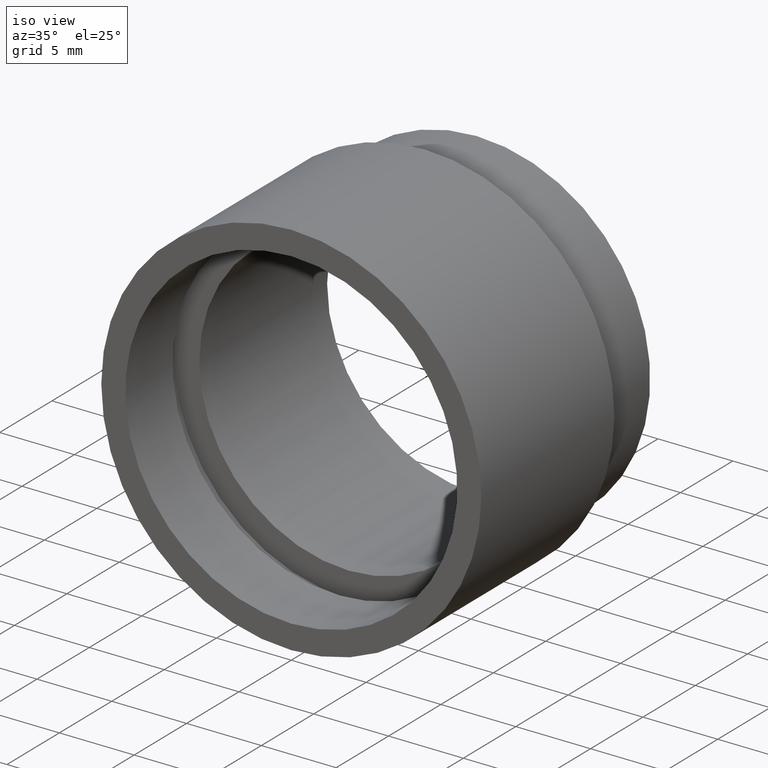
[diagram: clean part render]
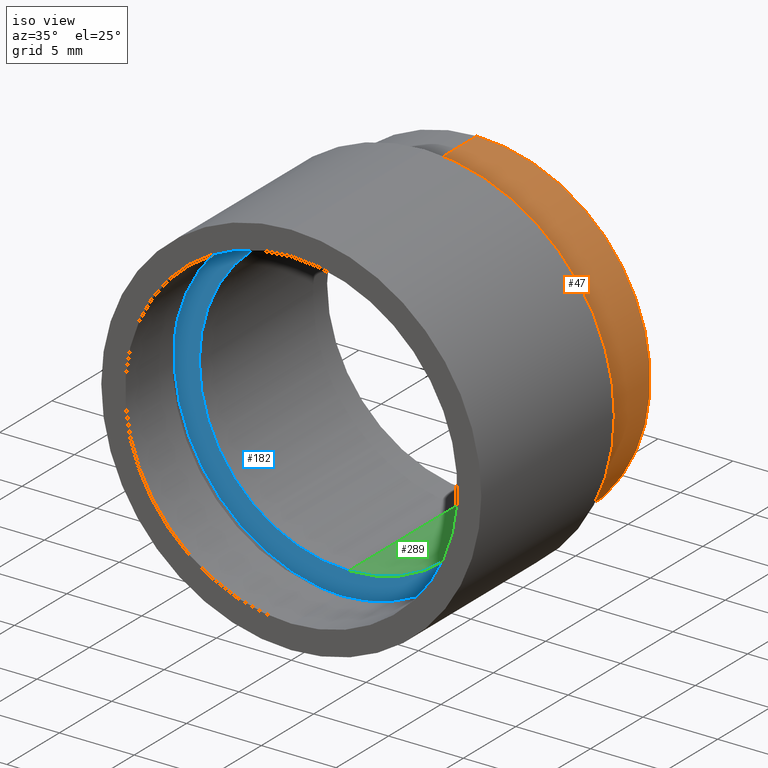
[diagram: same view with three faces highlighted in distinct colors, each labeled with its STEP entity id]
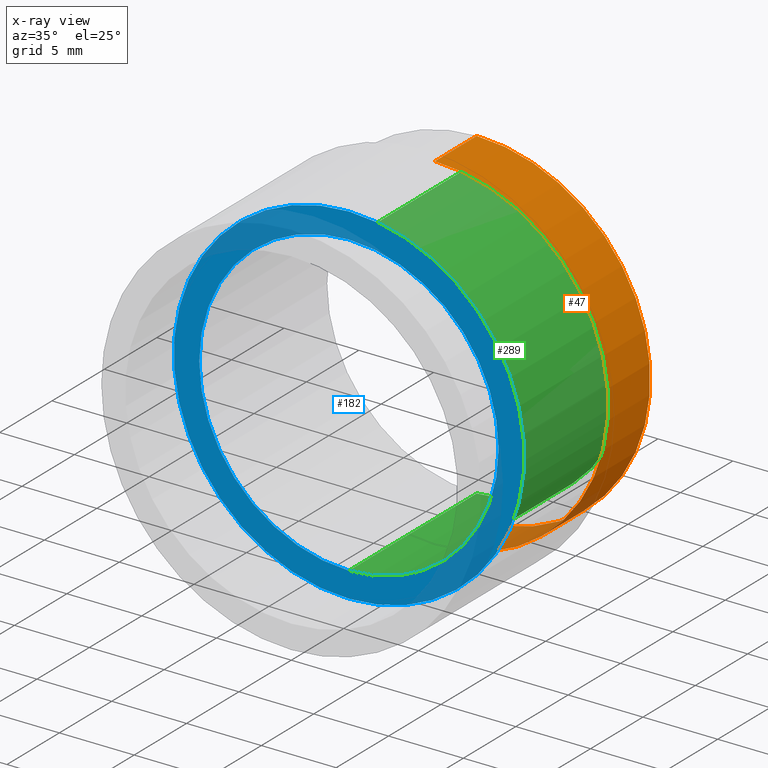
[diagram: x-ray of the same camera — body ghosted, the three highlighted faces saturated]
A machine part, iso view with three faces highlighted in distinct colors.
The next image is the same camera in x-ray (body ghosted, the three faces saturated) — at least one of them is partly hidden behind the body in this view.
Their STEP definitions:

[orange] entity #47 — the highlighted cylindrical surface (partial cylindrical patch) has radius 11.6 mm, axis along (-0, 1, -0).
#26 = ORIENTED_EDGE ( 'NONE', *, *, #190, .T. ) ;
#31 = LINE ( 'NONE', #90, #527 ) ;
#32 = EDGE_CURVE ( 'NONE', #418, #258, #116, .T. ) ;
#43 = AXIS2_PLACEMENT_3D ( 'NONE', #614, #613, #246 ) ;
#45 = DIRECTION ( 'NONE',  ( 0.0000000000000000000, 0.0000000000000000000, 1.000000000000000000 ) ) ;
#47 = ADVANCED_FACE ( 'NONE', ( #454 ), #70, .T. ) ;
#57 = CARTESIAN_POINT ( 'NONE',  ( 1.420590287010931700E-015, 13.69999999999999000, -11.60000000000001700 ) ) ;
#61 = VERTEX_POINT ( 'NONE', #323 ) ;
#70 = CYLINDRICAL_SURFACE ( 'NONE', #114, 11.60000000000001700 ) ;
#90 = CARTESIAN_POINT ( 'NONE',  ( 0.0000000000000000000, 161.3761669434274500, 11.60000000000001700 ) ) ;
#114 = AXIS2_PLACEMENT_3D ( 'NONE', #414, #601, #367 ) ;
#116 = LINE ( 'NONE', #604, #603 ) ;
#178 = ORIENTED_EDGE ( 'NONE', *, *, #607, .F. ) ;
#190 = EDGE_CURVE ( 'NONE', #61, #418, #574, .T. ) ;
#224 = EDGE_CURVE ( 'NONE', #61, #434, #31, .T. ) ;
#234 = ORIENTED_EDGE ( 'NONE', *, *, #32, .T. ) ;
#241 = DIRECTION ( 'NONE',  ( -0.0000000000000000000, 1.000000000000000000, -0.0000000000000000000 ) ) ;
#246 = DIRECTION ( 'NONE',  ( 0.0000000000000000000, 0.0000000000000000000, 1.000000000000000000 ) ) ;
#255 = CARTESIAN_POINT ( 'NONE',  ( 0.0000000000000000000, 17.69999999999999200, 0.0000000000000000000 ) ) ;
#258 = VERTEX_POINT ( 'NONE', #609 ) ;
#295 = AXIS2_PLACEMENT_3D ( 'NONE', #255, #342, #45 ) ;
#322 = DIRECTION ( 'NONE',  ( -0.0000000000000000000, 1.000000000000000000, -0.0000000000000000000 ) ) ;
#323 = CARTESIAN_POINT ( 'NONE',  ( 0.0000000000000000000, 13.69999999999999000, 11.60000000000001700 ) ) ;
#342 = DIRECTION ( 'NONE',  ( -0.0000000000000000000, 1.000000000000000000, -0.0000000000000000000 ) ) ;
#367 = DIRECTION ( 'NONE',  ( 0.0000000000000000000, 0.0000000000000000000, 1.000000000000000000 ) ) ;
#409 = CIRCLE ( 'NONE', #295, 11.60000000000001700 ) ;
#414 = CARTESIAN_POINT ( 'NONE',  ( 0.0000000000000000000, 161.3761669434274500, 0.0000000000000000000 ) ) ;
#418 = VERTEX_POINT ( 'NONE', #57 ) ;
#434 = VERTEX_POINT ( 'NONE', #453 ) ;
#453 = CARTESIAN_POINT ( 'NONE',  ( 0.0000000000000000000, 17.69999999999999200, 11.60000000000001700 ) ) ;
#454 = FACE_OUTER_BOUND ( 'NONE', #464, .T. ) ;
#464 = EDGE_LOOP ( 'NONE', ( #26, #234, #178, #475 ) ) ;
#475 = ORIENTED_EDGE ( 'NONE', *, *, #224, .F. ) ;
#527 = VECTOR ( 'NONE', #241, 1000.000000000000000 ) ;
#574 = CIRCLE ( 'NONE', #43, 11.60000000000001700 ) ;
#601 = DIRECTION ( 'NONE',  ( -0.0000000000000000000, 1.000000000000000000, -0.0000000000000000000 ) ) ;
#603 = VECTOR ( 'NONE', #322, 1000.000000000000000 ) ;
#604 = CARTESIAN_POINT ( 'NONE',  ( 1.420590287010931700E-015, 161.3761669434274500, -11.60000000000001700 ) ) ;
#607 = EDGE_CURVE ( 'NONE', #434, #258, #409, .T. ) ;
#609 = CARTESIAN_POINT ( 'NONE',  ( 1.420590287010931700E-015, 17.69999999999999200, -11.60000000000001700 ) ) ;
#613 = DIRECTION ( 'NONE',  ( -0.0000000000000000000, 1.000000000000000000, -0.0000000000000000000 ) ) ;
#614 = CARTESIAN_POINT ( 'NONE',  ( 0.0000000000000000000, 13.69999999999999000, 0.0000000000000000000 ) ) ;

[blue] entity #182 — the highlighted planar face has unit normal (-0, 1, 0).
#1 = DIRECTION ( 'NONE',  ( 0.0000000000000000000, 0.0000000000000000000, 1.000000000000000000 ) ) ;
#29 = CARTESIAN_POINT ( 'NONE',  ( 1.432836755002405700E-015, 5.499999999999976900, -11.70000000000001900 ) ) ;
#34 = VERTEX_POINT ( 'NONE', #29 ) ;
#69 = FACE_BOUND ( 'NONE', #320, .T. ) ;
#71 = EDGE_CURVE ( 'NONE', #34, #110, #624, .T. ) ;
#73 = VERTEX_POINT ( 'NONE', #329 ) ;
#110 = VERTEX_POINT ( 'NONE', #411 ) ;
#131 = DIRECTION ( 'NONE',  ( 0.0000000000000000000, 0.0000000000000000000, 1.000000000000000000 ) ) ;
#147 = CARTESIAN_POINT ( 'NONE',  ( 0.0000000000000000000, 5.499999999999976900, 0.0000000000000000000 ) ) ;
#163 = ORIENTED_EDGE ( 'NONE', *, *, #486, .F. ) ;
#179 = AXIS2_PLACEMENT_3D ( 'NONE', #180, #278, #131 ) ;
#180 = CARTESIAN_POINT ( 'NONE',  ( 0.0000000000000000000, 5.499999999999976900, 0.0000000000000000000 ) ) ;
#182 = ADVANCED_FACE ( 'NONE', ( #334, #69 ), #380, .F. ) ;
#204 = CIRCLE ( 'NONE', #239, 10.00000000000002000 ) ;
#205 = DIRECTION ( 'NONE',  ( -0.0000000000000000000, 1.000000000000000000, -0.0000000000000000000 ) ) ;
#239 = AXIS2_PLACEMENT_3D ( 'NONE', #297, #205, #529 ) ;
#247 = ORIENTED_EDGE ( 'NONE', *, *, #71, .F. ) ;
#266 = DIRECTION ( 'NONE',  ( -0.0000000000000000000, 1.000000000000000000, -0.0000000000000000000 ) ) ;
#278 = DIRECTION ( 'NONE',  ( -0.0000000000000000000, 1.000000000000000000, -0.0000000000000000000 ) ) ;
#284 = DIRECTION ( 'NONE',  ( 0.0000000000000000000, 0.0000000000000000000, 1.000000000000000000 ) ) ;
#291 = VERTEX_POINT ( 'NONE', #528 ) ;
#297 = CARTESIAN_POINT ( 'NONE',  ( 0.0000000000000000000, 5.499999999999976900, 0.0000000000000000000 ) ) ;
#308 = EDGE_LOOP ( 'NONE', ( #163, #247 ) ) ;
#320 = EDGE_LOOP ( 'NONE', ( #463, #495 ) ) ;
#329 = CARTESIAN_POINT ( 'NONE',  ( 0.0000000000000000000, 5.499999999999976900, 10.00000000000002000 ) ) ;
#334 = FACE_OUTER_BOUND ( 'NONE', #308, .T. ) ;
#336 = AXIS2_PLACEMENT_3D ( 'NONE', #147, #430, #1 ) ;
#380 = PLANE ( 'NONE',  #598 ) ;
#403 = CIRCLE ( 'NONE', #450, 11.70000000000001900 ) ;
#411 = CARTESIAN_POINT ( 'NONE',  ( 0.0000000000000000000, 5.499999999999976900, 11.70000000000001900 ) ) ;
#430 = DIRECTION ( 'NONE',  ( -0.0000000000000000000, 1.000000000000000000, -0.0000000000000000000 ) ) ;
#450 = AXIS2_PLACEMENT_3D ( 'NONE', #497, #266, #590 ) ;
#463 = ORIENTED_EDGE ( 'NONE', *, *, #596, .T. ) ;
#486 = EDGE_CURVE ( 'NONE', #110, #34, #403, .T. ) ;
#495 = ORIENTED_EDGE ( 'NONE', *, *, #565, .T. ) ;
#497 = CARTESIAN_POINT ( 'NONE',  ( 0.0000000000000000000, 5.499999999999976900, 0.0000000000000000000 ) ) ;
#516 = CARTESIAN_POINT ( 'NONE',  ( 11.70000000000001900, 5.499999999999982200, 0.0000000000000000000 ) ) ;
#517 = CIRCLE ( 'NONE', #336, 10.00000000000002000 ) ;
#528 = CARTESIAN_POINT ( 'NONE',  ( 1.224646799147355400E-015, 5.499999999999976900, -10.00000000000002000 ) ) ;
#529 = DIRECTION ( 'NONE',  ( 0.0000000000000000000, 0.0000000000000000000, 1.000000000000000000 ) ) ;
#565 = EDGE_CURVE ( 'NONE', #291, #73, #204, .T. ) ;
#571 = DIRECTION ( 'NONE',  ( -0.0000000000000000000, 1.000000000000000000, 0.0000000000000000000 ) ) ;
#590 = DIRECTION ( 'NONE',  ( 0.0000000000000000000, 0.0000000000000000000, 1.000000000000000000 ) ) ;
#596 = EDGE_CURVE ( 'NONE', #73, #291, #517, .T. ) ;
#598 = AXIS2_PLACEMENT_3D ( 'NONE', #516, #571, #284 ) ;
#624 = CIRCLE ( 'NONE', #179, 11.70000000000001900 ) ;

[green] entity #289 — the highlighted cylindrical surface (partial cylindrical patch) has radius 10 mm, axis along (-0, 1, -0).
#1 = DIRECTION ( 'NONE',  ( 0.0000000000000000000, 0.0000000000000000000, 1.000000000000000000 ) ) ;
#49 = DIRECTION ( 'NONE',  ( 0.0000000000000000000, 0.0000000000000000000, 1.000000000000000000 ) ) ;
#53 = DIRECTION ( 'NONE',  ( 0.0000000000000000000, 0.0000000000000000000, 1.000000000000000000 ) ) ;
#73 = VERTEX_POINT ( 'NONE', #329 ) ;
#88 = DIRECTION ( 'NONE',  ( -0.0000000000000000000, 1.000000000000000000, -0.0000000000000000000 ) ) ;
#120 = VECTOR ( 'NONE', #88, 1000.000000000000000 ) ;
#147 = CARTESIAN_POINT ( 'NONE',  ( 0.0000000000000000000, 5.499999999999976900, 0.0000000000000000000 ) ) ;
#162 = CARTESIAN_POINT ( 'NONE',  ( 1.224646799147355400E-015, 161.3761669434274500, -10.00000000000002000 ) ) ;
#167 = DIRECTION ( 'NONE',  ( -0.0000000000000000000, 1.000000000000000000, -0.0000000000000000000 ) ) ;
#171 = CIRCLE ( 'NONE', #304, 10.00000000000002000 ) ;
#184 = FACE_OUTER_BOUND ( 'NONE', #506, .T. ) ;
#191 = LINE ( 'NONE', #612, #120 ) ;
#212 = EDGE_CURVE ( 'NONE', #73, #238, #191, .T. ) ;
#238 = VERTEX_POINT ( 'NONE', #573 ) ;
#253 = DIRECTION ( 'NONE',  ( -0.0000000000000000000, 1.000000000000000000, -0.0000000000000000000 ) ) ;
#268 = CYLINDRICAL_SURFACE ( 'NONE', #469, 10.00000000000002000 ) ;
#289 = ADVANCED_FACE ( 'NONE', ( #184 ), #268, .F. ) ;
#291 = VERTEX_POINT ( 'NONE', #528 ) ;
#300 = CARTESIAN_POINT ( 'NONE',  ( 0.0000000000000000000, 17.69999999999999200, 0.0000000000000000000 ) ) ;
#304 = AXIS2_PLACEMENT_3D ( 'NONE', #300, #390, #53 ) ;
#329 = CARTESIAN_POINT ( 'NONE',  ( 0.0000000000000000000, 5.499999999999976900, 10.00000000000002000 ) ) ;
#336 = AXIS2_PLACEMENT_3D ( 'NONE', #147, #430, #1 ) ;
#355 = LINE ( 'NONE', #162, #478 ) ;
#376 = ORIENTED_EDGE ( 'NONE', *, *, #377, .F. ) ;
#377 = EDGE_CURVE ( 'NONE', #291, #412, #355, .T. ) ;
#390 = DIRECTION ( 'NONE',  ( -0.0000000000000000000, 1.000000000000000000, -0.0000000000000000000 ) ) ;
#404 = CARTESIAN_POINT ( 'NONE',  ( 1.224646799147355400E-015, 17.69999999999999200, -10.00000000000002000 ) ) ;
#412 = VERTEX_POINT ( 'NONE', #404 ) ;
#430 = DIRECTION ( 'NONE',  ( -0.0000000000000000000, 1.000000000000000000, -0.0000000000000000000 ) ) ;
#431 = CARTESIAN_POINT ( 'NONE',  ( 0.0000000000000000000, 161.3761669434274500, 0.0000000000000000000 ) ) ;
#469 = AXIS2_PLACEMENT_3D ( 'NONE', #431, #253, #49 ) ;
#478 = VECTOR ( 'NONE', #167, 1000.000000000000000 ) ;
#506 = EDGE_LOOP ( 'NONE', ( #376, #531, #558, #605 ) ) ;
#517 = CIRCLE ( 'NONE', #336, 10.00000000000002000 ) ;
#528 = CARTESIAN_POINT ( 'NONE',  ( 1.224646799147355400E-015, 5.499999999999976900, -10.00000000000002000 ) ) ;
#531 = ORIENTED_EDGE ( 'NONE', *, *, #596, .F. ) ;
#558 = ORIENTED_EDGE ( 'NONE', *, *, #212, .T. ) ;
#573 = CARTESIAN_POINT ( 'NONE',  ( 0.0000000000000000000, 17.69999999999999200, 10.00000000000002000 ) ) ;
#591 = EDGE_CURVE ( 'NONE', #238, #412, #171, .T. ) ;
#596 = EDGE_CURVE ( 'NONE', #73, #291, #517, .T. ) ;
#605 = ORIENTED_EDGE ( 'NONE', *, *, #591, .T. ) ;
#612 = CARTESIAN_POINT ( 'NONE',  ( 0.0000000000000000000, 161.3761669434274500, 10.00000000000002000 ) ) ;